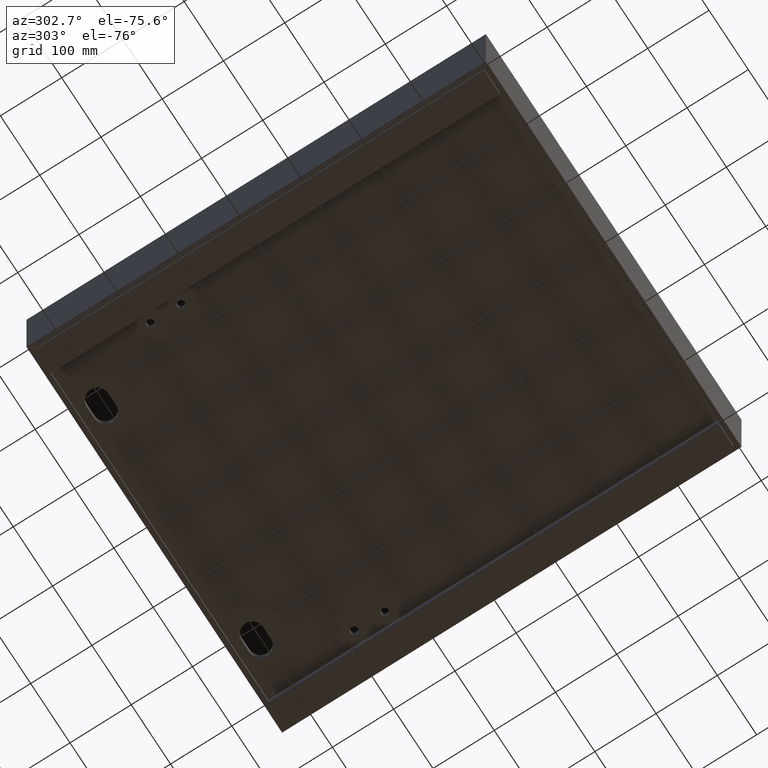
[diagram: clean part render]
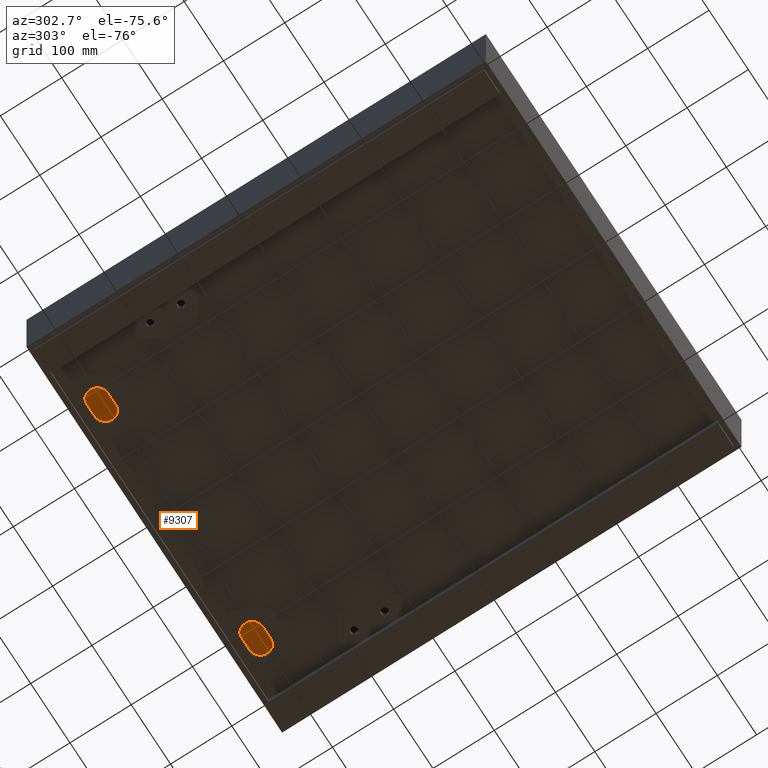
[diagram: same view with one face highlighted and labeled with its STEP entity id]
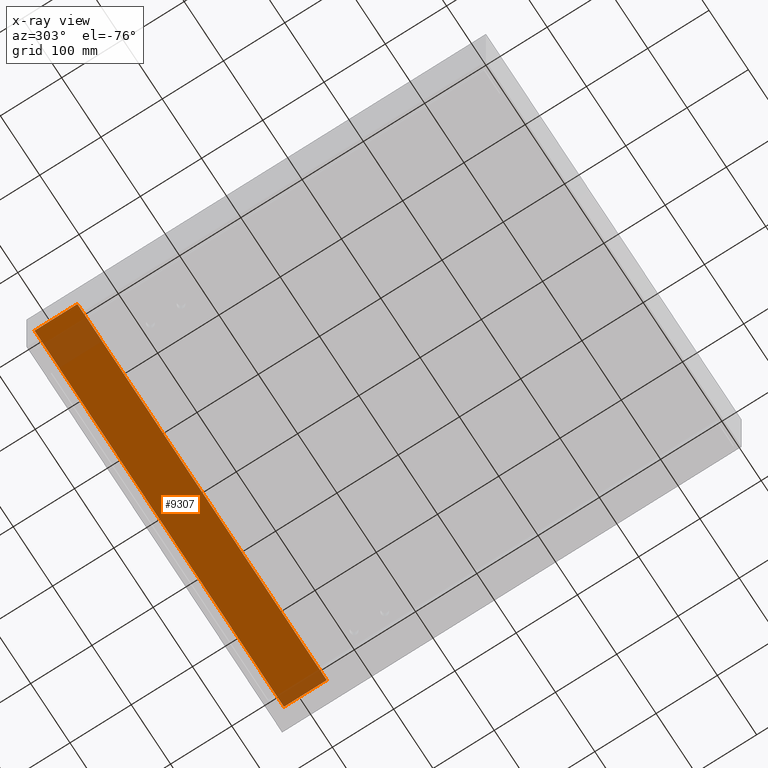
[diagram: x-ray of the same camera — body ghosted, the highlighted face saturated]
A machine part, auxiliary view. The second image highlights one B-rep face of the part: STEP entity #9307.
The next image is the same camera in x-ray: the body ghosted, the highlighted face saturated — about 9% of this face is hidden behind the body in this view.
In plain terms, the highlighted planar face has unit normal (0, -0, 1).
Its self-contained STEP definition (entity closure, byte-faithful):
#789 = DIRECTION ( 'NONE',  ( 1.000000000000000000, 0.0000000000000000000, -1.153591111524576718E-16 ) ) ;
#845 = CARTESIAN_POINT ( 'NONE',  ( 713.8053897699189747, 671.9999000000001388, -51.00000000000001421 ) ) ;
#965 = CARTESIAN_POINT ( 'NONE',  ( 8.000000000000007105, 742.0000000000000000, -50.99999999999992895 ) ) ;
#1023 = EDGE_CURVE ( 'NONE', #8143, #2938, #5519, .T. ) ;
#1527 = PLANE ( 'NONE',  #1594 ) ;
#1594 = AXIS2_PLACEMENT_3D ( 'NONE', #4513, #7409, #789 ) ;
#1653 = LINE ( 'NONE', #4628, #8034 ) ;
#1684 = ORIENTED_EDGE ( 'NONE', *, *, #8892, .T. ) ;
#1839 = DIRECTION ( 'NONE',  ( -7.336865497381627220E-32, 1.000000000000000000, 9.912691416022603297E-17 ) ) ;
#2141 = CARTESIAN_POINT ( 'NONE',  ( 642.0000000000000000, 742.0000000000000000, -51.00000000000000711 ) ) ;
#2266 = VERTEX_POINT ( 'NONE', #8367 ) ;
#2328 = ORIENTED_EDGE ( 'NONE', *, *, #5828, .T. ) ;
#2630 = EDGE_CURVE ( 'NONE', #2938, #7261, #1653, .T. ) ;
#2938 = VERTEX_POINT ( 'NONE', #2141 ) ;
#3364 = LINE ( 'NONE', #6283, #7605 ) ;
#3836 = DIRECTION ( 'NONE',  ( -1.000000000000000000, 3.851859888774471706E-34, 1.153591111524576718E-16 ) ) ;
#4513 = CARTESIAN_POINT ( 'NONE',  ( 713.8053897699189747, 742.0000000000000000, -51.00000000000000711 ) ) ;
#4628 = CARTESIAN_POINT ( 'NONE',  ( 713.8053897699189747, 742.0000000000000000, -51.00000000000000711 ) ) ;
#4779 = ORIENTED_EDGE ( 'NONE', *, *, #1023, .F. ) ;
#5306 = VECTOR ( 'NONE', #3836, 1000.000000000000000 ) ;
#5479 = EDGE_LOOP ( 'NONE', ( #4779, #1684, #2328, #9470 ) ) ;
#5519 = LINE ( 'NONE', #8440, #5998 ) ;
#5828 = EDGE_CURVE ( 'NONE', #2266, #7261, #3364, .T. ) ;
#5998 = VECTOR ( 'NONE', #1839, 1000.000000000000000 ) ;
#6283 = CARTESIAN_POINT ( 'NONE',  ( 8.000000000000007105, 742.0000000000000000, -50.99999999999992895 ) ) ;
#6833 = CARTESIAN_POINT ( 'NONE',  ( 642.0000000000000000, 671.9999000000001388, -51.00000000000000711 ) ) ;
#7261 = VERTEX_POINT ( 'NONE', #965 ) ;
#7409 = DIRECTION ( 'NONE',  ( 1.153591111524576718E-16, -9.912691416022603297E-17, 1.000000000000000000 ) ) ;
#7468 = LINE ( 'NONE', #845, #5306 ) ;
#7533 = DIRECTION ( 'NONE',  ( -1.000000000000000000, 3.851859888774471706E-34, 1.153591111524576718E-16 ) ) ;
#7605 = VECTOR ( 'NONE', #9242, 1000.000000000000000 ) ;
#8034 = VECTOR ( 'NONE', #7533, 1000.000000000000000 ) ;
#8138 = FACE_OUTER_BOUND ( 'NONE', #5479, .T. ) ;
#8143 = VERTEX_POINT ( 'NONE', #6833 ) ;
#8367 = CARTESIAN_POINT ( 'NONE',  ( 8.000000000000007105, 671.9999000000001388, -50.99999999999993605 ) ) ;
#8440 = CARTESIAN_POINT ( 'NONE',  ( 642.0000000000000000, 742.0000000000000000, -51.00000000000000711 ) ) ;
#8892 = EDGE_CURVE ( 'NONE', #8143, #2266, #7468, .T. ) ;
#9242 = DIRECTION ( 'NONE',  ( -0.0000000000000000000, 1.000000000000000000, 9.912691416022603297E-17 ) ) ;
#9307 = ADVANCED_FACE ( 'NONE', ( #8138 ), #1527, .F. ) ;
#9470 = ORIENTED_EDGE ( 'NONE', *, *, #2630, .F. ) ;